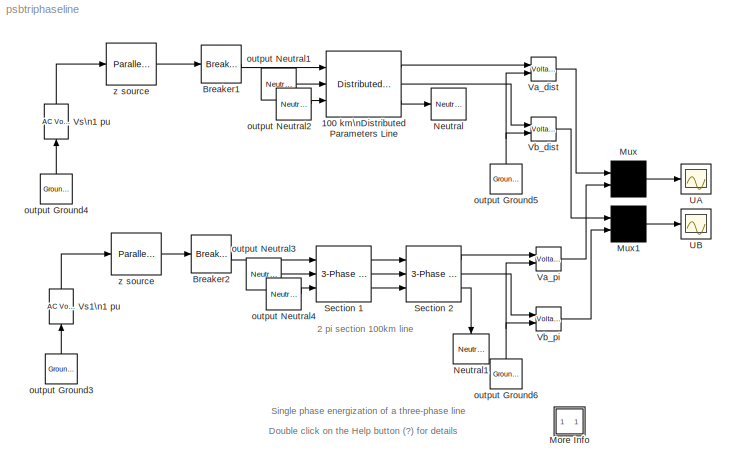
MODEL psbtriphaseline
KIND model
BLOCK [Reference] 100 km\nDistributed Parameters Line  REF=powerlib2/Elements/Distributed Parameters Line
  PSBOutputType = 111111111111111111111111111111
  Ports = [3, 3]
  SourceBlock = powerlib2/Elements/Distributed Parameters Line
  SourceType = Distributed Parameters Line
  Tag = PoWeRsYsTeMbLoCk
  c = [12.74e-9 7.751e-9]
  f = 60
  l = [0.9337e-3  4.1264e-3]
  lgt = 100
  mesure = None
  n = 3
  r = [0.01273 0.3864]
  x1 = [0 0 0 0; 0.0001244 0 0 0; 0.0002488 0 0 0; 0.0003733 0 0 0; 0.0004977 0 0 0; 0.0006221 0 0 0]
  x2 = [0 0 0 0; 0.0001244 0 0 0; 0.0002488 0 0 0; 0.0003733 0 0 0; 0.0004977 0 0 0; 0.0006221 0 0 0]
  x3 = [0 0 0 0; 0.0001244 0 0 0; 0.0002488 0 0 0; 0.0003733 0 0 0; 0.0004977 0 0 0; 0.0006221 0 0 0]
  x4 = [0 0 0 0; 0.0001244 0 0 0; 0.0002488 0 0 0; 0.0003733 0 0 0; 0.0004977 0 0 0; 0.0006221 0 0 0]
  x5 = 0
BLOCK [Reference] Breaker1  REF=powerlib2/Elements/Breaker
  PSBOutputType = 1
  Ports = [1, 1]
  SourceBlock = powerlib2/Elements/Breaker
  SourceType = Breaker
  Tag = PoWeRsYsTeMbLoCk
  Ts = 0
  a = 0.01
  c = 0
  comext = off
  cs = 0
  mesure = None
  rs = inf
  times = [ 0.25/60  4/60 ]
BLOCK [Reference] Breaker2  REF=powerlib2/Elements/Breaker
  PSBOutputType = 1
  Ports = [1, 1]
  SourceBlock = powerlib2/Elements/Breaker
  SourceType = Breaker
  Tag = PoWeRsYsTeMbLoCk
  Ts = 0
  a = 0.01
  c = 0
  comext = off
  cs = 0
  mesure = None
  rs = inf
  times = [ .25/60  4/60 ]
BLOCK [SubSystem] More Info
  MaskDisplay = disp('?')
  MaskIconFrame = on
  MaskIconOpaque = on
  MaskIconRotate = none
  MaskIconUnits = autoscale
  MinAlgLoopOccurrences = off
  Ports = []
  RTWSystemCode = Auto
  TreatAsAtomicUnit = off
BLOCK [Mux] Mux
  Inputs = 2
  Ports = [2, 1]
BLOCK [Mux] Mux1
  Inputs = 2
  Ports = [2, 1]
BLOCK [Reference] Neutral  REF=powerlib2/Connectors/Neutral (input)
  Ports = [1]
  SourceBlock = powerlib2/Connectors/Neutral (input)
  SourceType = Neutral
  Tag = PoWeRsYsTeMbLoCk
  no = 995
BLOCK [Reference] Neutral1  REF=powerlib2/Connectors/Neutral (input)
  Ports = [1]
  SourceBlock = powerlib2/Connectors/Neutral (input)
  SourceType = Neutral
  Tag = PoWeRsYsTeMbLoCk
  no = 996
BLOCK [Reference] Section 1  REF=powerlib2/Elements/3-Phase PI Section
  C10 = [12.74e-9 7.751e-9]
  L10 = [ 0.9337e-3  4.1264e-3]
  Ports = [3, 3]
  R10 = [ 0.01273 0.3864]
  SourceBlock = powerlib2/Elements/3-Phase PI Section
  SourceType = Three-phase transmission line pi-section
  f = 60
  long = 50
BLOCK [Reference] Section 2  REF=powerlib2/Elements/3-Phase PI Section
  C10 = [12.74e-9 7.751e-9]
  L10 = [ 0.9337e-3  4.1264e-3]
  Ports = [3, 3]
  R10 = [ 0.01273 0.3864]
  SourceBlock = powerlib2/Elements/3-Phase PI Section
  SourceType = Three-phase transmission line pi-section
  f = 60
  long = 50
BLOCK [Scope] UA
  DataFormat = Array
  LimitDataPoints = off
  NumInputPorts = 1
  Ports = [1]
  TickLabels = on
  TimeRange = 0.1
  YMax = 4
  YMin = -4
BLOCK [Scope] UB
  DataFormat = Array
  MaxDataPoints = 500000
  NumInputPorts = 1
  Ports = [1]
  TickLabels = on
  TimeRange = 0.1
  YMax = 1
  YMin = -1
BLOCK [Reference] Va_dist  REF=powerlib2/Measurements/Voltage Measurement
  OutputType = Magnitude
  PSBOutputType = 0
  PSBequivalent = 0
  PhasorSimulation = off
  Ports = [2, 1]
  SourceBlock = powerlib2/Measurements/Voltage Measurement
  SourceType = Voltage Measurement
  Tag = PoWeRsYsTeMmEaSuReMeNt
BLOCK [Reference] Va_pi  REF=powerlib2/Measurements/Voltage Measurement
  OutputType = Magnitude
  PSBOutputType = 0
  PSBequivalent = 0
  PhasorSimulation = off
  Ports = [2, 1]
  SourceBlock = powerlib2/Measurements/Voltage Measurement
  SourceType = Voltage Measurement
  Tag = PoWeRsYsTeMmEaSuReMeNt
BLOCK [Reference] Vb_dist  REF=powerlib2/Measurements/Voltage Measurement
  OutputType = Magnitude
  PSBOutputType = 0
  PSBequivalent = 0
  PhasorSimulation = off
  Ports = [2, 1]
  SourceBlock = powerlib2/Measurements/Voltage Measurement
  SourceType = Voltage Measurement
  Tag = PoWeRsYsTeMmEaSuReMeNt
BLOCK [Reference] Vb_pi  REF=powerlib2/Measurements/Voltage Measurement
  OutputType = Magnitude
  PSBOutputType = 0
  PSBequivalent = 0
  PhasorSimulation = off
  Ports = [2, 1]
  SourceBlock = powerlib2/Measurements/Voltage Measurement
  SourceType = Voltage Measurement
  Tag = PoWeRsYsTeMmEaSuReMeNt
BLOCK [Reference] Vs1\n1 pu  REF=powerlib2/Electrical\nSources/AC Voltage Source
  A = 1
  F = 60
  P = 0
  PSBOutputType = 1
  Ports = [1, 1]
  SourceBlock = powerlib2/Electrical\nSources/AC Voltage Source
  SourceType = AC Voltage Source
  Tag = PoWeRsYsTeMbLoCk
  mesure = None
  stime = 0
BLOCK [Reference] Vs\n1 pu  REF=powerlib2/Electrical\nSources/AC Voltage Source
  A = 1
  F = 60
  P = 0
  PSBOutputType = 1
  Ports = [1, 1]
  SourceBlock = powerlib2/Electrical\nSources/AC Voltage Source
  SourceType = AC Voltage Source
  Tag = PoWeRsYsTeMbLoCk
  mesure = None
  stime = 0
BLOCK [Reference] output Ground3  REF=powerlib2/Connectors/Ground (output)
  PSBOutputType = 1
  Ports = [0, 1]
  SourceBlock = powerlib2/Connectors/Ground (output)
  SourceType = Ground
  Tag = PoWeRsYsTeMbLoCk
BLOCK [Reference] output Ground4  REF=powerlib2/Connectors/Ground (output)
  PSBOutputType = 1
  Ports = [0, 1]
  SourceBlock = powerlib2/Connectors/Ground (output)
  SourceType = Ground
  Tag = PoWeRsYsTeMbLoCk
BLOCK [Reference] output Ground5  REF=powerlib2/Connectors/Ground (output)
  PSBOutputType = 1
  Ports = [0, 1]
  SourceBlock = powerlib2/Connectors/Ground (output)
  SourceType = Ground
  Tag = PoWeRsYsTeMbLoCk
BLOCK [Reference] output Ground6  REF=powerlib2/Connectors/Ground (output)
  PSBOutputType = 1
  Ports = [0, 1]
  SourceBlock = powerlib2/Connectors/Ground (output)
  SourceType = Ground
  Tag = PoWeRsYsTeMbLoCk
BLOCK [Reference] output Neutral1  REF=powerlib2/Connectors/Neutral (output)
  PSBOutputType = 1
  Ports = [0, 1]
  SourceBlock = powerlib2/Connectors/Neutral (output)
  SourceType = Neutral
  Tag = PoWeRsYsTeMbLoCk
  no = 991
BLOCK [Reference] output Neutral2  REF=powerlib2/Connectors/Neutral (output)
  PSBOutputType = 1
  Ports = [0, 1]
  SourceBlock = powerlib2/Connectors/Neutral (output)
  SourceType = Neutral
  Tag = PoWeRsYsTeMbLoCk
  no = 992
BLOCK [Reference] output Neutral3  REF=powerlib2/Connectors/Neutral (output)
  PSBOutputType = 1
  Ports = [0, 1]
  SourceBlock = powerlib2/Connectors/Neutral (output)
  SourceType = Neutral
  Tag = PoWeRsYsTeMbLoCk
  no = 993
BLOCK [Reference] output Neutral4  REF=powerlib2/Connectors/Neutral (output)
  PSBOutputType = 1
  Ports = [0, 1]
  SourceBlock = powerlib2/Connectors/Neutral (output)
  SourceType = Neutral
  Tag = PoWeRsYsTeMbLoCk
  no = 994
BLOCK [Reference] z source  REF=powerlib2/Elements/Parallel RLC Branch
  PSBOutputType = 1
  Ports = [1, 1]
  SourceBlock = powerlib2/Elements/Parallel RLC Branch
  SourceType = Parallel RLC Branch
  Tag = PoWeRsYsTeMbLoCk
  a = 180
  b = 47.8e-3
  c = 0
  mesure = None
BLOCK [Reference] z source   REF=powerlib2/Elements/Parallel RLC Branch
  PSBOutputType = 1
  Ports = [1, 1]
  SourceBlock = powerlib2/Elements/Parallel RLC Branch
  SourceType = Parallel RLC Branch
  Tag = PoWeRsYsTeMbLoCk
  a = 180
  b = 47.8e-3
  c = 0
  mesure = None
ANNOTATION (root): 2 pi section 100km line
ANNOTATION (root): Double click on the Help button (?) for details
ANNOTATION (root): Single phase energization of a three-phase line
ANNOTATION More Info: A 100 km, 3-phase line is energized on a 735 kV, 30 000 MVA equivalent network.\nThe line is first energized on phase A at t = 1/4 cycle (maximum of source voltage) and then deenergized at t = 4 cycles.\nPhase B and phase C are left open.\nSwitchings are performed simultaneously on two different line models:\n\n- Distributed parameter line\n- 3-phase PI section line consisting of two 50 km section...<+193ch>
ANNOTATION More Info: Circuit Description
ANNOTATION More Info: Demonstration
ANNOTATION More Info: G. Sybille (Hydro-Quebec)
ANNOTATION More Info: Open the two scopes and start the simulation.\nCompare the voltages obtained on phase A and phase B (induced voltage) with the two models.\nZoom on voltages rigth after energizing and notice the sharp edges obtained with the distributed parameter line (yellow trace).\nThese voltage steps which are due to travelling wave reflections at both ends of the line are filtered by the PI model.\nNotice als...<+80ch>
ANNOTATION More Info: This demonstration compares transients obtained with\na distributed parameter line model and a PI section line model
LINE 100 km\nDistributed Parameters Line:1 -> Va_dist:1
LINE 100 km\nDistributed Parameters Line:2 -> Vb_dist:1
LINE 100 km\nDistributed Parameters Line:3 -> Neutral:1
LINE Breaker1:1 -> 100 km\nDistributed Parameters Line:1
LINE Breaker2:1 -> Section 1:1
LINE Mux1:1 -> UB:1
LINE Mux:1 -> UA:1
LINE Section 1:1 -> Section 2:1
LINE Section 1:2 -> Section 2:2
LINE Section 1:3 -> Section 2:3
LINE Section 2:1 -> Va_pi:1
LINE Section 2:2 -> Vb_pi:1
LINE Section 2:3 -> Neutral1:1
LINE Va_dist:1 -> Mux:1
LINE Va_pi:1 -> Mux:2
LINE Vb_dist:1 -> Mux1:1
LINE Vb_pi:1 -> Mux1:2
LINE Vs1\n1 pu:1 -> z source :1
LINE Vs\n1 pu:1 -> z source:1
LINE output Ground3:1 -> Vs1\n1 pu:1
LINE output Ground4:1 -> Vs\n1 pu:1
NET output Ground5:1 -> Va_dist:2, Vb_dist:2
NET output Ground6:1 -> Va_pi:2, Vb_pi:2
LINE output Neutral1:1 -> 100 km\nDistributed Parameters Line:2
LINE output Neutral2:1 -> 100 km\nDistributed Parameters Line:3
LINE output Neutral3:1 -> Section 1:2
LINE output Neutral4:1 -> Section 1:3
LINE z source :1 -> Breaker2:1
LINE z source:1 -> Breaker1:1
note: NET lines group one-source signal fan-out (src -> all destinations, sorted); 1:1 wires keep LINE
